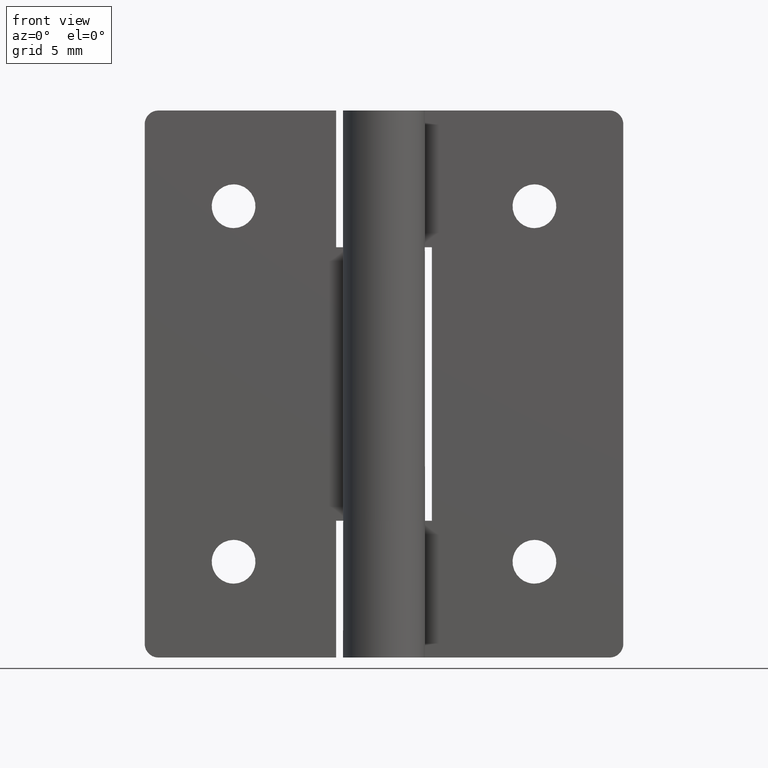
[diagram: clean part render]
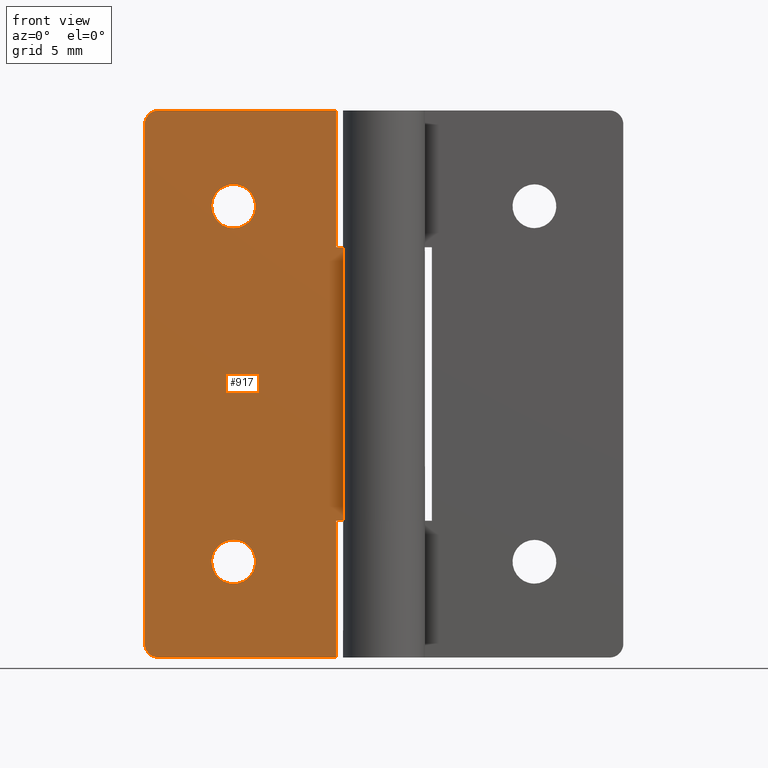
[diagram: same view with one face highlighted and labeled with its STEP entity id]
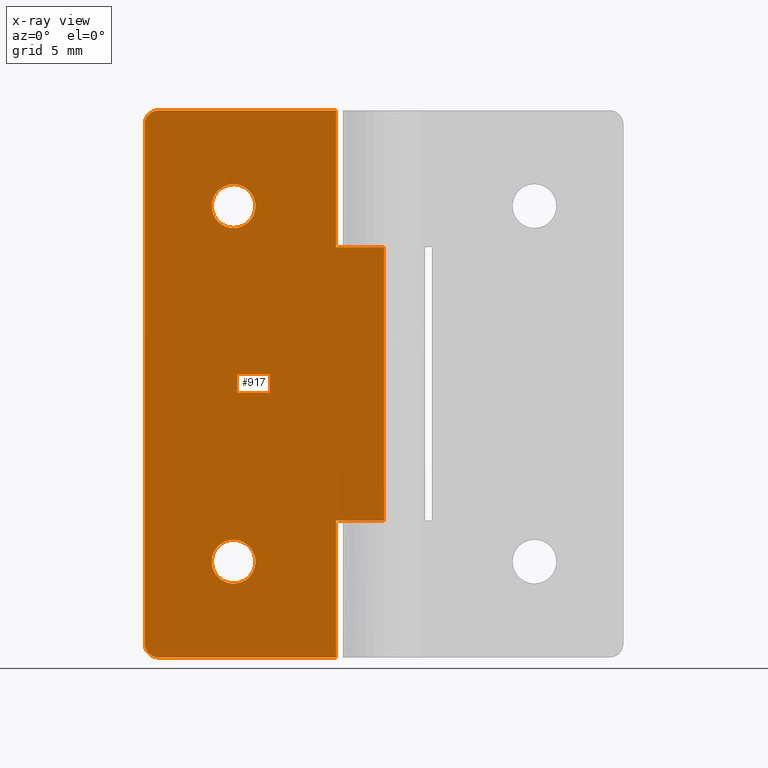
[diagram: x-ray of the same camera — body ghosted, the highlighted face saturated]
A machine part, front view. The second image highlights one B-rep face of the part: STEP entity #917.
The next image is the same camera in x-ray: the body ghosted, the highlighted face saturated — about 0% of this face is hidden behind the body in this view.
In plain terms, the highlighted face is a freeform B-spline surface patch.
Its self-contained STEP definition (entity closure, byte-faithful):
#62=CARTESIAN_POINT('',(-11.0,1.499999999999946,8.600000000000000));
#63=VERTEX_POINT('',#62);
#64=CARTESIAN_POINT('',(-12.595067733972201,1.499999999999946,7.125534553174797));
#65=VERTEX_POINT('',#64);
#66=CARTESIAN_POINT('',(-11.0,1.499999999999946,8.600000000000000));
#67=CARTESIAN_POINT('',(-12.479024786634074,1.499999999999947,8.600000000000003));
#68=CARTESIAN_POINT('',(-12.595067733972201,1.499999999999946,7.125534553174798));
#76=(BOUNDED_CURVE()B_SPLINE_CURVE(2,(#66,#67,#68),.UNSPECIFIED.,.F.,.U.)B_SPLINE_CURVE_WITH_KNOTS((3,3),(0.0,0.236331300630565),.UNSPECIFIED.)CURVE()GEOMETRIC_REPRESENTATION_ITEM()RATIONAL_B_SPLINE_CURVE((1.0,0.723120658607776,0.969723356167220))REPRESENTATION_ITEM(''));
#77=EDGE_CURVE('',#63,#65,#76,.T.);
#118=CARTESIAN_POINT('',(-9.404932266027801,1.499999999999946,6.874465446825204));
#119=VERTEX_POINT('',#118);
#125=CARTESIAN_POINT('',(-9.404932266027801,1.499999999999947,6.874465446825204));
#126=CARTESIAN_POINT('',(-9.399999999999999,1.499999999999947,6.937135828777437));
#127=CARTESIAN_POINT('',(-9.399999999999999,1.499999999999946,7.0));
#128=CARTESIAN_POINT('',(-9.399999999999999,1.499999999999946,8.600000000000000));
#129=CARTESIAN_POINT('',(-11.0,1.499999999999946,8.600000000000000));
#137=(BOUNDED_CURVE()B_SPLINE_CURVE(2,(#125,#126,#127,#128,#129),.UNSPECIFIED.,.F.,.U.)B_SPLINE_CURVE_WITH_KNOTS((3,2,3),(0.736331300630565,0.750000000000000,1.0),.UNSPECIFIED.)CURVE()GEOMETRIC_REPRESENTATION_ITEM()RATIONAL_B_SPLINE_CURVE((0.969723356167221,0.983986122578771,1.0,0.707106781186548,1.0))REPRESENTATION_ITEM(''));
#138=EDGE_CURVE('',#119,#63,#137,.T.);
#161=CARTESIAN_POINT('',(-11.0,1.499999999999946,5.400000000000000));
#162=VERTEX_POINT('',#161);
#163=CARTESIAN_POINT('',(-12.595067733972204,1.499999999999946,7.125534553174797));
#164=CARTESIAN_POINT('',(-12.599999999999994,1.499999999999947,7.062864171222563));
#165=CARTESIAN_POINT('',(-12.600000000000000,1.499999999999946,7.0));
#166=CARTESIAN_POINT('',(-12.599999999999996,1.499999999999946,5.400000000000000));
#167=CARTESIAN_POINT('',(-11.0,1.499999999999946,5.400000000000000));
#175=(BOUNDED_CURVE()B_SPLINE_CURVE(2,(#163,#164,#165,#166,#167),.UNSPECIFIED.,.F.,.U.)B_SPLINE_CURVE_WITH_KNOTS((3,2,3),(0.236331300630565,0.250000000000000,0.500000000000000),.UNSPECIFIED.)CURVE()GEOMETRIC_REPRESENTATION_ITEM()RATIONAL_B_SPLINE_CURVE((0.969723356167220,0.983986122578771,1.0,0.707106781186548,1.0))REPRESENTATION_ITEM(''));
#176=EDGE_CURVE('',#65,#162,#175,.T.);
#178=CARTESIAN_POINT('',(-11.0,1.499999999999946,5.400000000000000));
#179=CARTESIAN_POINT('',(-9.520975213365917,1.499999999999947,5.400000000000000));
#180=CARTESIAN_POINT('',(-9.404932266027801,1.499999999999946,6.874465446825204));
#188=(BOUNDED_CURVE()B_SPLINE_CURVE(2,(#178,#179,#180),.UNSPECIFIED.,.F.,.U.)B_SPLINE_CURVE_WITH_KNOTS((3,3),(0.500000000000000,0.736331300630566),.UNSPECIFIED.)CURVE()GEOMETRIC_REPRESENTATION_ITEM()RATIONAL_B_SPLINE_CURVE((1.0,0.723120658607776,0.969723356167222))REPRESENTATION_ITEM(''));
#189=EDGE_CURVE('',#162,#119,#188,.T.);
#244=CARTESIAN_POINT('',(-11.0,1.499999999999946,34.599991999999887));
#245=VERTEX_POINT('',#244);
#246=CARTESIAN_POINT('',(-12.595067733972201,1.499999999999946,33.125526553174687));
#247=VERTEX_POINT('',#246);
#248=CARTESIAN_POINT('',(-11.0,1.499999999999946,34.599991999999887));
#249=CARTESIAN_POINT('',(-12.479024786634065,1.499999999999947,34.599991999999894));
#250=CARTESIAN_POINT('',(-12.595067733972197,1.499999999999946,33.125526553174694));
#258=(BOUNDED_CURVE()B_SPLINE_CURVE(2,(#248,#249,#250),.UNSPECIFIED.,.F.,.U.)B_SPLINE_CURVE_WITH_KNOTS((3,3),(0.0,0.236331300630564),.UNSPECIFIED.)CURVE()GEOMETRIC_REPRESENTATION_ITEM()RATIONAL_B_SPLINE_CURVE((1.0,0.723120658607778,0.969723356167218))REPRESENTATION_ITEM(''));
#259=EDGE_CURVE('',#245,#247,#258,.T.);
#300=CARTESIAN_POINT('',(-9.404932266027801,1.499999999999946,32.874457446825090));
#301=VERTEX_POINT('',#300);
#307=CARTESIAN_POINT('',(-9.404932266027801,1.499999999999946,32.874457446825090));
#308=CARTESIAN_POINT('',(-9.399999999999999,1.499999999999946,32.937127828777328));
#309=CARTESIAN_POINT('',(-9.399999999999999,1.499999999999946,32.999991999999892));
#310=CARTESIAN_POINT('',(-9.399999999999999,1.499999999999946,34.599991999999887));
#311=CARTESIAN_POINT('',(-11.0,1.499999999999946,34.599991999999887));
#319=(BOUNDED_CURVE()B_SPLINE_CURVE(2,(#307,#308,#309,#310,#311),.UNSPECIFIED.,.F.,.U.)B_SPLINE_CURVE_WITH_KNOTS((3,2,3),(0.736331300630565,0.750000000000000,1.0),.UNSPECIFIED.)CURVE()GEOMETRIC_REPRESENTATION_ITEM()RATIONAL_B_SPLINE_CURVE((0.969723356167220,0.983986122578771,1.0,0.707106781186548,1.0))REPRESENTATION_ITEM(''));
#320=EDGE_CURVE('',#301,#245,#319,.T.);
#343=CARTESIAN_POINT('',(-11.0,1.499999999999946,31.399991999999902));
#344=VERTEX_POINT('',#343);
#345=CARTESIAN_POINT('',(-12.595067733972195,1.499999999999947,33.125526553174701));
#346=CARTESIAN_POINT('',(-12.599999999999998,1.499999999999946,33.062856171222464));
#347=CARTESIAN_POINT('',(-12.600000000000000,1.499999999999946,32.999991999999892));
#348=CARTESIAN_POINT('',(-12.599999999999996,1.499999999999946,31.399991999999898));
#349=CARTESIAN_POINT('',(-11.0,1.499999999999946,31.399991999999902));
#357=(BOUNDED_CURVE()B_SPLINE_CURVE(2,(#345,#346,#347,#348,#349),.UNSPECIFIED.,.F.,.U.)B_SPLINE_CURVE_WITH_KNOTS((3,2,3),(0.236331300630564,0.250000000000000,0.500000000000000),.UNSPECIFIED.)CURVE()GEOMETRIC_REPRESENTATION_ITEM()RATIONAL_B_SPLINE_CURVE((0.969723356167218,0.983986122578770,1.0,0.707106781186548,1.0))REPRESENTATION_ITEM(''));
#358=EDGE_CURVE('',#247,#344,#357,.T.);
#360=CARTESIAN_POINT('',(-11.0,1.499999999999946,31.399991999999902));
#361=CARTESIAN_POINT('',(-9.520975213365917,1.499999999999947,31.399991999999902));
#362=CARTESIAN_POINT('',(-9.404932266027801,1.499999999999946,32.874457446825090));
#370=(BOUNDED_CURVE()B_SPLINE_CURVE(2,(#360,#361,#362),.UNSPECIFIED.,.F.,.U.)B_SPLINE_CURVE_WITH_KNOTS((3,3),(0.500000000000000,0.736331300630566),.UNSPECIFIED.)CURVE()GEOMETRIC_REPRESENTATION_ITEM()RATIONAL_B_SPLINE_CURVE((1.0,0.723120658607776,0.969723356167222))REPRESENTATION_ITEM(''));
#371=EDGE_CURVE('',#344,#301,#370,.T.);
#422=CARTESIAN_POINT('',(-16.500000000000000,1.500000000000000,40.0));
#423=VERTEX_POINT('',#422);
#424=CARTESIAN_POINT('',(-17.500000000000000,1.500000000000000,39.0));
#425=VERTEX_POINT('',#424);
#426=CARTESIAN_POINT('',(-16.500000000000000,1.500000000000000,40.0));
#427=CARTESIAN_POINT('',(-17.499999999999996,1.500000000000000,39.999999999999993));
#428=CARTESIAN_POINT('',(-17.500000000000000,1.500000000000000,39.0));
#436=(BOUNDED_CURVE()B_SPLINE_CURVE(2,(#426,#427,#428),.UNSPECIFIED.,.F.,.U.)CURVE()GEOMETRIC_REPRESENTATION_ITEM()QUASI_UNIFORM_CURVE()RATIONAL_B_SPLINE_CURVE((1.0,0.707106781186548,1.0))REPRESENTATION_ITEM(''));
#437=EDGE_CURVE('',#423,#425,#436,.T.);
#483=CARTESIAN_POINT('',(-17.500000000000000,1.500000000000000,1.0));
#484=VERTEX_POINT('',#483);
#485=CARTESIAN_POINT('',(-16.500000000000000,1.500000000000000,0.0));
#486=VERTEX_POINT('',#485);
#487=CARTESIAN_POINT('',(-17.500000000000000,1.500000000000000,1.0));
#488=CARTESIAN_POINT('',(-17.499999999999996,1.500000000000000,0.0));
#489=CARTESIAN_POINT('',(-16.500000000000000,1.500000000000000,0.0));
#497=(BOUNDED_CURVE()B_SPLINE_CURVE(2,(#487,#488,#489),.UNSPECIFIED.,.F.,.U.)CURVE()GEOMETRIC_REPRESENTATION_ITEM()QUASI_UNIFORM_CURVE()RATIONAL_B_SPLINE_CURVE((1.0,0.707106781186548,1.0))REPRESENTATION_ITEM(''));
#498=EDGE_CURVE('',#484,#486,#497,.T.);
#565=CARTESIAN_POINT('',(9.184352E-017,1.500000000000000,10.000007999999999));
#566=VERTEX_POINT('',#565);
#586=CARTESIAN_POINT('',(-3.500000000000000,1.499999999999946,10.000007999999999));
#587=VERTEX_POINT('',#586);
#588=CARTESIAN_POINT('',(-3.500000000000000,1.499999999999946,10.000007999999999));
#589=CARTESIAN_POINT('',(9.184352E-017,1.500000000000000,10.000007999999999));
#590=QUASI_UNIFORM_CURVE('',1,(#588,#589),.UNSPECIFIED.,.F.,.U.);
#591=EDGE_CURVE('',#587,#566,#590,.T.);
#613=CARTESIAN_POINT('',(-3.500000000000000,1.500000000000000,0.0));
#614=VERTEX_POINT('',#613);
#628=CARTESIAN_POINT('',(-3.500000000000000,1.500000000000000,0.0));
#629=CARTESIAN_POINT('',(-3.500000000000000,1.499999999999946,10.000007999999999));
#630=QUASI_UNIFORM_CURVE('',1,(#628,#629),.UNSPECIFIED.,.F.,.U.);
#631=EDGE_CURVE('',#614,#587,#630,.T.);
#650=CARTESIAN_POINT('',(-3.500000000000000,1.499999999999946,29.999991999999999));
#651=VERTEX_POINT('',#650);
#657=CARTESIAN_POINT('',(9.184352E-017,1.500000000000000,29.999992000000049));
#658=VERTEX_POINT('',#657);
#659=CARTESIAN_POINT('',(9.184352E-017,1.500000000000000,29.999992000000049));
#660=CARTESIAN_POINT('',(-3.500000000000000,1.499999999999946,29.999991999999999));
#661=QUASI_UNIFORM_CURVE('',1,(#659,#660),.UNSPECIFIED.,.F.,.U.);
#662=EDGE_CURVE('',#658,#651,#661,.T.);
#727=CARTESIAN_POINT('',(-3.500000000000000,1.499999999999946,40.0));
#728=VERTEX_POINT('',#727);
#734=CARTESIAN_POINT('',(-3.500000000000000,1.499999999999946,29.999991999999999));
#735=CARTESIAN_POINT('',(-3.500000000000000,1.499999999999946,40.0));
#736=QUASI_UNIFORM_CURVE('',1,(#734,#735),.UNSPECIFIED.,.F.,.U.);
#737=EDGE_CURVE('',#651,#728,#736,.T.);
#753=CARTESIAN_POINT('',(-17.500000000000000,1.500000000000000,39.0));
#754=CARTESIAN_POINT('',(-17.500000000000000,1.500000000000000,1.0));
#755=QUASI_UNIFORM_CURVE('',1,(#753,#754),.UNSPECIFIED.,.F.,.U.);
#756=EDGE_CURVE('',#425,#484,#755,.T.);
#773=CARTESIAN_POINT('',(-3.500000000000000,1.499999999999946,40.0));
#774=CARTESIAN_POINT('',(-16.500000000000000,1.500000000000000,40.0));
#775=QUASI_UNIFORM_CURVE('',1,(#773,#774),.UNSPECIFIED.,.F.,.U.);
#776=EDGE_CURVE('',#728,#423,#775,.T.);
#787=CARTESIAN_POINT('',(-3.500000000000000,1.500000000000000,0.0));
#788=CARTESIAN_POINT('',(-16.500000000000000,1.500000000000000,0.0));
#789=QUASI_UNIFORM_CURVE('',1,(#787,#788),.UNSPECIFIED.,.F.,.U.);
#790=EDGE_CURVE('',#614,#486,#789,.T.);
#831=CARTESIAN_POINT('',(9.184352E-017,1.500000000000000,29.999992000000049));
#832=CARTESIAN_POINT('',(9.184352E-017,1.500000000000000,10.000007999999999));
#833=QUASI_UNIFORM_CURVE('',1,(#831,#832),.UNSPECIFIED.,.F.,.U.);
#834=EDGE_CURVE('',#658,#566,#833,.T.);
#888=CARTESIAN_POINT('',(-18.374124966081599,1.500000000000000,41.997999922472239));
#889=CARTESIAN_POINT('',(-18.374124966081599,1.500000000000000,-1.998000995355844));
#890=CARTESIAN_POINT('',(0.874125435468182,1.500000000000000,41.997999922472239));
#891=CARTESIAN_POINT('',(0.874125435468182,1.500000000000000,-1.998000995355844));
#892=B_SPLINE_SURFACE_WITH_KNOTS('',1,1,((#888,#890),(#889,#891)),.UNSPECIFIED.,.F.,.F.,.U.,(2,2),(2,2),(0.0,43.996000917828077),(0.0,19.248250401549790),.UNSPECIFIED.);
#893=ORIENTED_EDGE('',*,*,#756,.T.);
#894=ORIENTED_EDGE('',*,*,#498,.T.);
#895=ORIENTED_EDGE('',*,*,#790,.F.);
#896=ORIENTED_EDGE('',*,*,#631,.T.);
#897=ORIENTED_EDGE('',*,*,#591,.T.);
#898=ORIENTED_EDGE('',*,*,#834,.F.);
#899=ORIENTED_EDGE('',*,*,#662,.T.);
#900=ORIENTED_EDGE('',*,*,#737,.T.);
#901=ORIENTED_EDGE('',*,*,#776,.T.);
#902=ORIENTED_EDGE('',*,*,#437,.T.);
#903=EDGE_LOOP('',(#893,#894,#895,#896,#897,#898,#899,#900,#901,#902));
#904=FACE_OUTER_BOUND('',#903,.T.);
#905=ORIENTED_EDGE('',*,*,#371,.F.);
#906=ORIENTED_EDGE('',*,*,#358,.F.);
#907=ORIENTED_EDGE('',*,*,#259,.F.);
#908=ORIENTED_EDGE('',*,*,#320,.F.);
#909=EDGE_LOOP('',(#905,#906,#907,#908));
#910=FACE_BOUND('',#909,.T.);
#911=ORIENTED_EDGE('',*,*,#189,.F.);
#912=ORIENTED_EDGE('',*,*,#176,.F.);
#913=ORIENTED_EDGE('',*,*,#77,.F.);
#914=ORIENTED_EDGE('',*,*,#138,.F.);
#915=EDGE_LOOP('',(#911,#912,#913,#914));
#916=FACE_BOUND('',#915,.T.);
#917=ADVANCED_FACE('',(#904,#910,#916),#892,.T.);